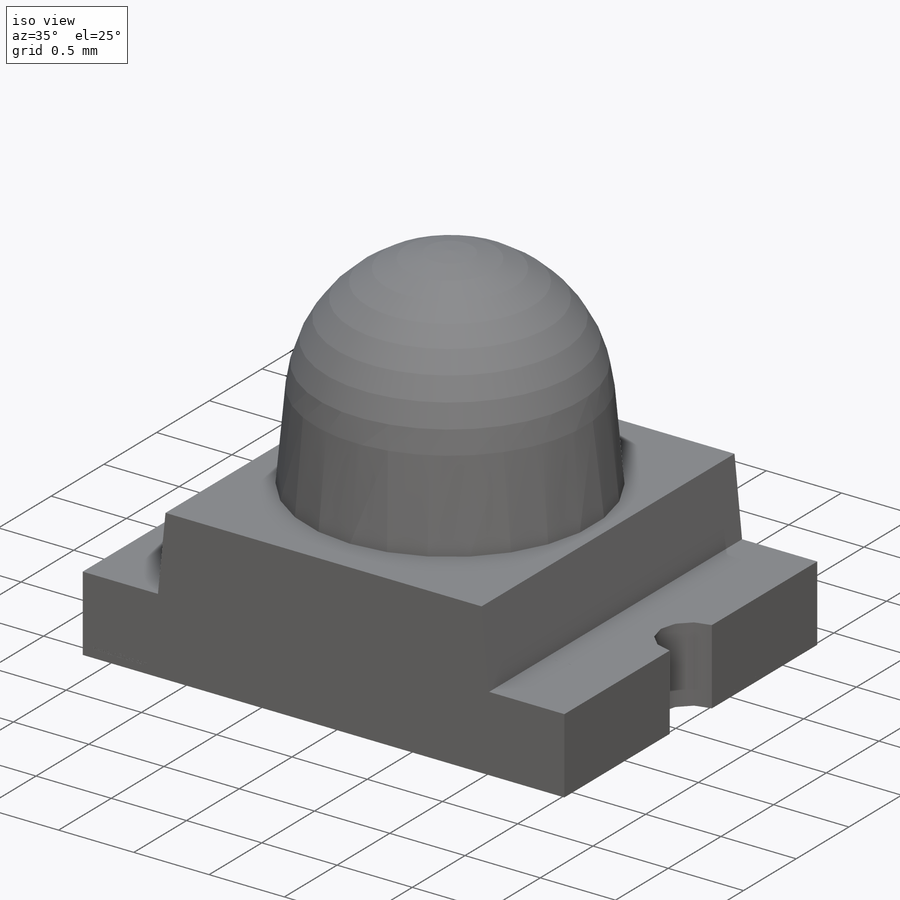
[diagram: iso view]
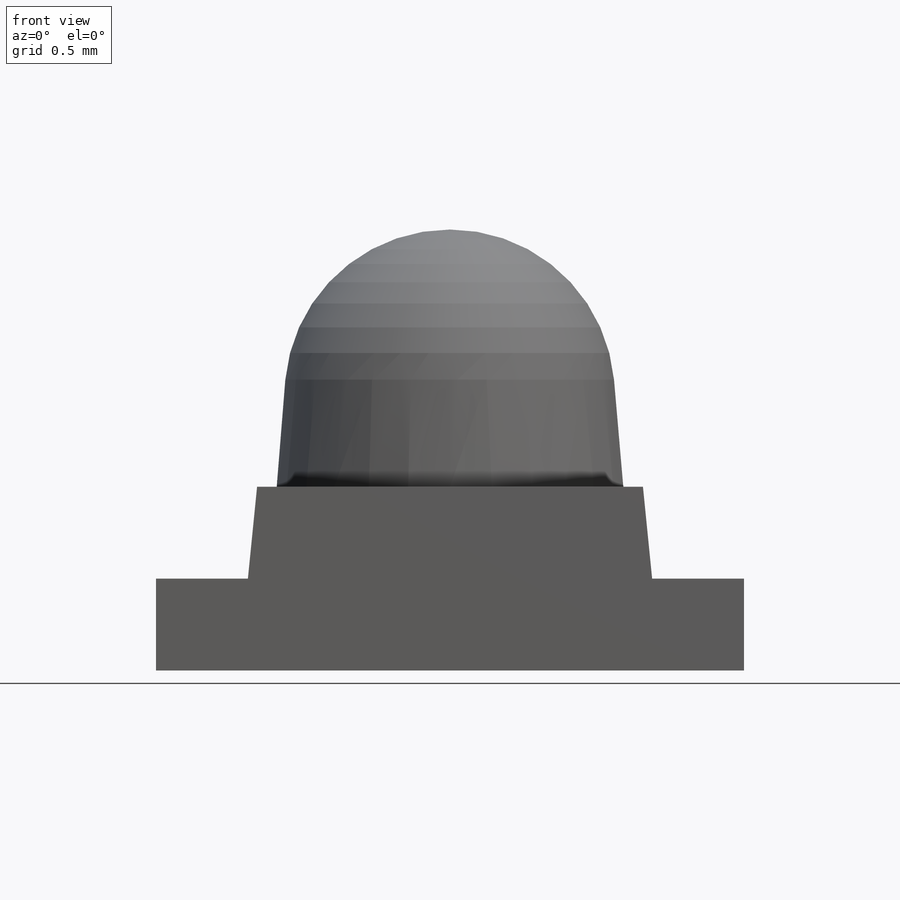
[diagram: front view]
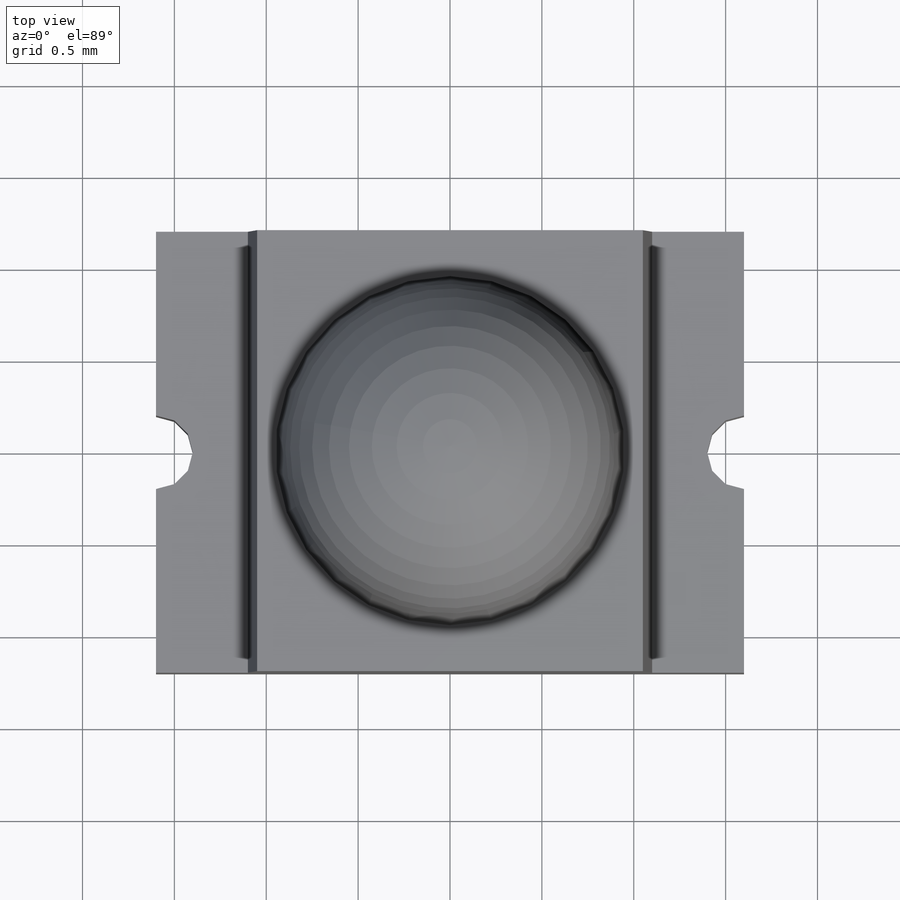
[diagram: top view]
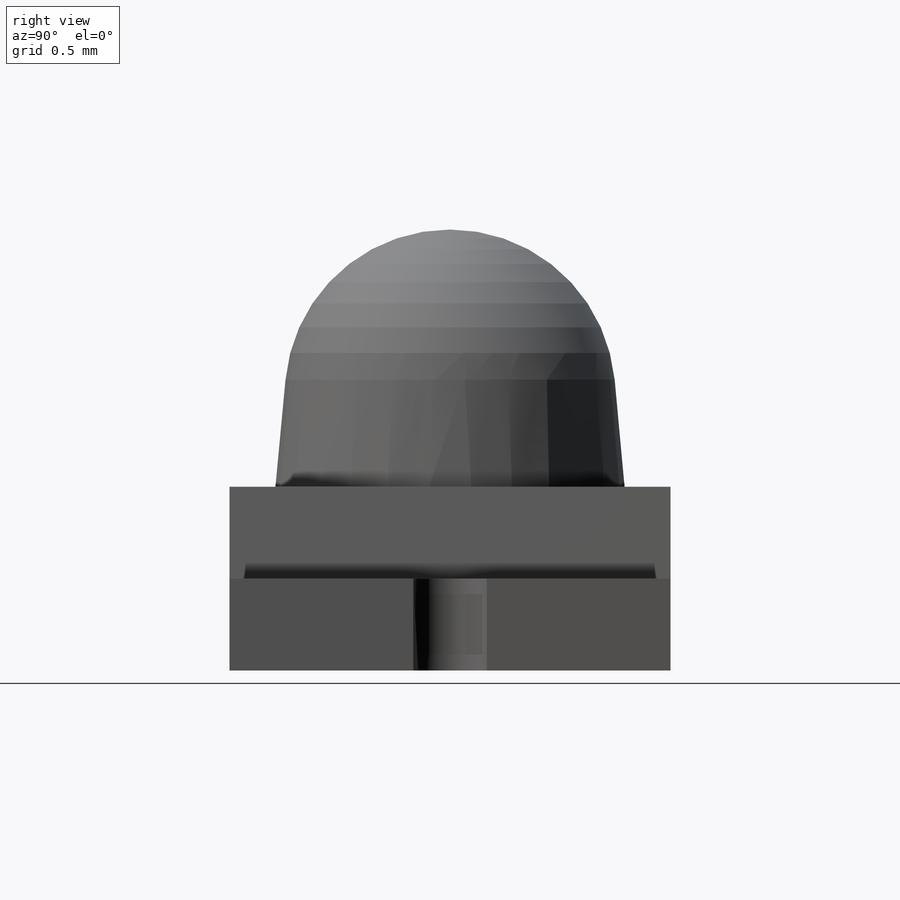
[diagram: right view]
SOLIDWORKS PART (.sldprt)
format: sldprt  version: not decoded by parser v0  size: 604,160 bytes
history: native  units: mm
features: sketch x7, extrude x4, cut_extrude x2, material x1, revolve x1 (+11 scaffold rows collapsed)
feature tree (26):
  scaffold x11  (default folders/planes/origin — collapsed)
  material  "Material <not specified>"
  sketch  "Sketch1"  dims[c1.D6=0.35mm c1.D7=1.8mm c1.D1=0.5mm c1.D2=3.2mm c1.D3=2.1mm c1.D4=2.2mm c1.D5=1.0mm c2.D6=0.95mm c2.D8=2.4mm]
  extrude  "Extrude1"  Depth=2.4mm
  extrude  "Extrude2"  [1 undecoded]
  sketch  "Sketch1<3>"  dims[D1=2.4mm]
  sketch  "Sketch3"  dims[c1.D1=0.5mm c1.D4=0.2mm c1.D2=0.5mm c1.D3=1.0mm c2.D4=1.1mm c2.D2=1.1mm c2.D1=0.6mm c3.D2=1.8mm c3.D3=1.4mm c3.D5=2.0mm c3.D1=2.1mm]
  cut_extrude  "Cut-Extrude2"  [1 undecoded]
  extrude  "Extrude4"  [1 undecoded]
  sketch  "Sketch3<3>"  dims[D1=0.03mm]
  sketch  "Sketch4"  dims[c1.D1=0.15mm c1.D2=0.15mm c1.D3=0.4mm c1.D4=0.4mm c2.D1=0.1mm c2.D2=0.2mm]
  extrude  "Extrude6"  Depth=0.03mm
  revolve  "Revolve1"  [1 undecoded]
  sketch  "Sketch1<5>"  dims[D1=360.0deg]
  sketch  "Sketch5"  dims[D1=0.05mm D2=0.5mm]
  cut_extrude  "Cut-Extrude3"  Depth=0.001mm
decode coverage: 10 of 14 modeling features carry decoded parameters
note: 4 parameter values undecoded
summary: no parameter record found for 4 features
note: suppression state not decoded; provenance and decode notes live in map.json
